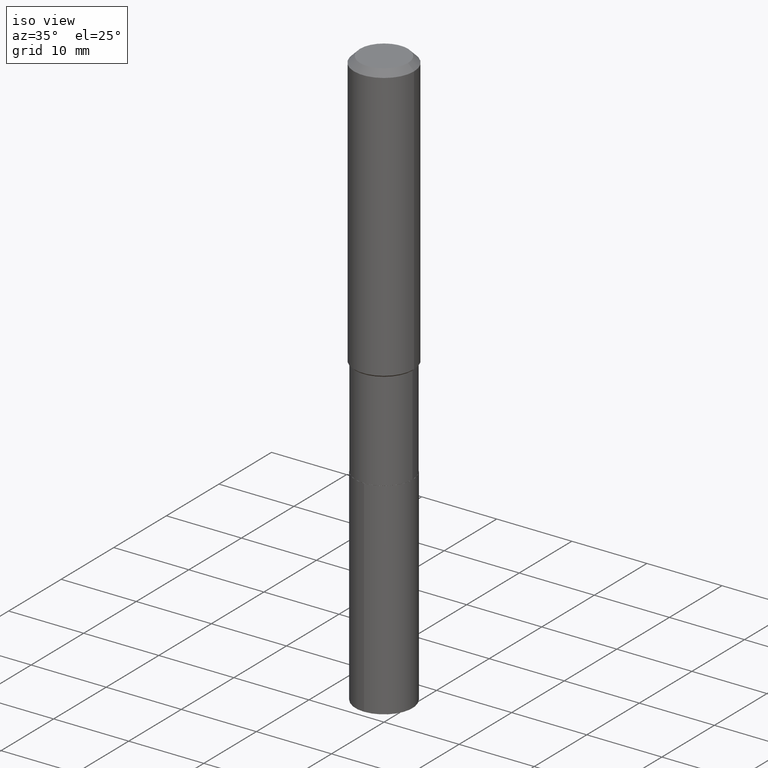
[diagram: clean part render]
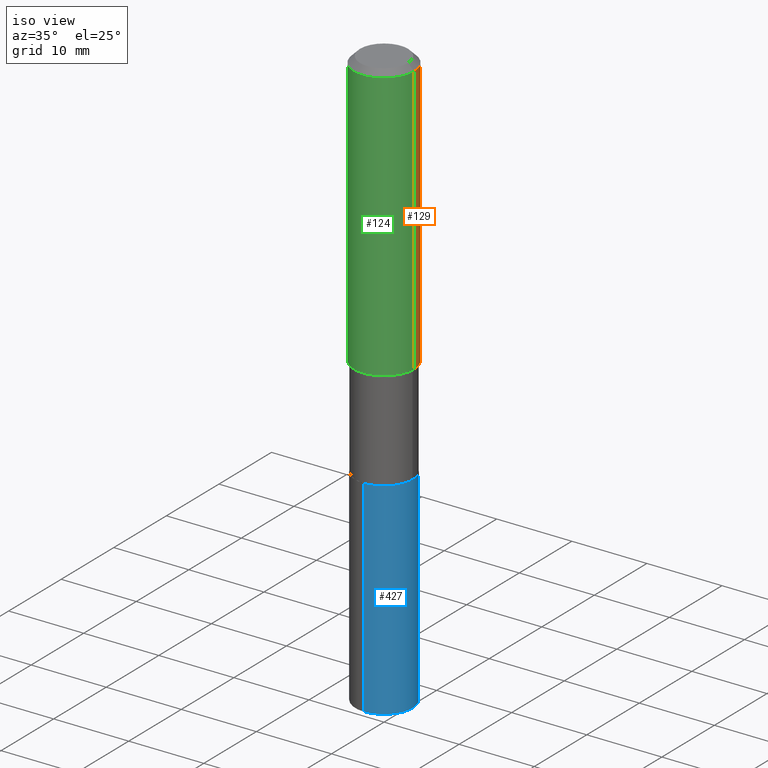
[diagram: same view with three faces highlighted in distinct colors, each labeled with its STEP entity id]
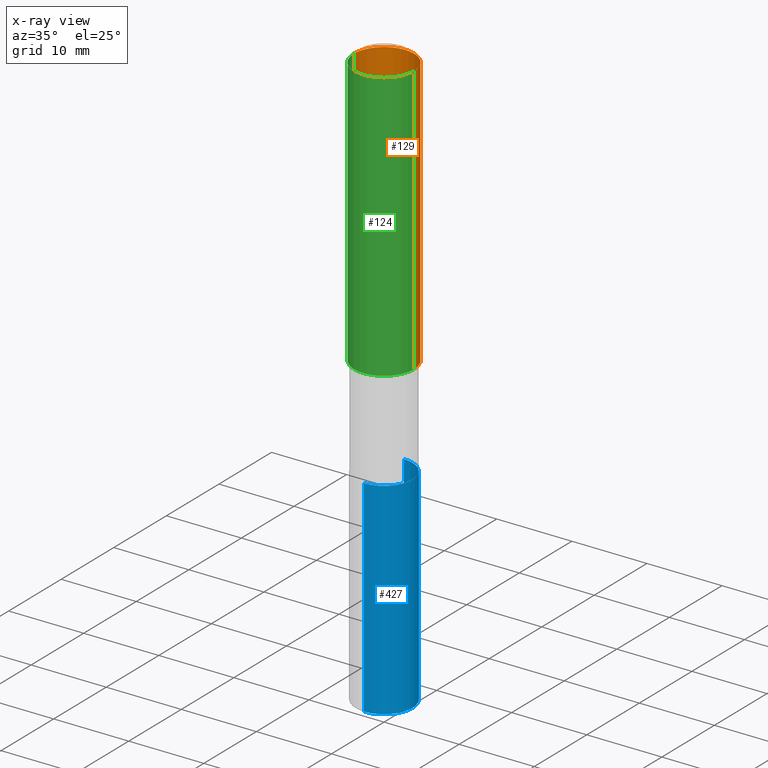
[diagram: x-ray of the same camera — body ghosted, the three highlighted faces saturated]
A machine part, iso view with three faces highlighted in distinct colors.
The next image is the same camera in x-ray (body ghosted, the three faces saturated) — at least one of them is partly hidden behind the body in this view.
Their STEP definitions:

[orange] entity #129 — the highlighted cylindrical surface (partial cylindrical patch) has radius 4.0005 mm, axis along (-0, 0, 1).
#9 = DIRECTION ( 'NONE',  ( -2.445468806185136597E-29, 3.491481338843145583E-15, 1.000000000000000000 ) ) ;
#26 = VECTOR ( 'NONE', #287, 39.37007874015748143 ) ;
#36 = EDGE_LOOP ( 'NONE', ( #361, #159, #177, #471 ) ) ;
#41 = CARTESIAN_POINT ( 'NONE',  ( 0.1575000000000000011, -1.209798283909146741E-15, -0.03150000000000019451 ) ) ;
#113 = AXIS2_PLACEMENT_3D ( 'NONE', #136, #9, #119 ) ;
#119 = DIRECTION ( 'NONE',  ( 1.000000000000000000, -6.982962677686267499E-15, 4.876176775795936353E-29 ) ) ;
#129 = ADVANCED_FACE ( 'NONE', ( #204 ), #288, .T. ) ;
#136 = CARTESIAN_POINT ( 'NONE',  ( 0.000000000000000000, 0.000000000000000000, 0.000000000000000000 ) ) ;
#141 = VERTEX_POINT ( 'NONE', #251 ) ;
#142 = CARTESIAN_POINT ( 'NONE',  ( 7.703226739483226971E-31, -1.099816621735597538E-16, -0.03150000000000019451 ) ) ;
#159 = ORIENTED_EDGE ( 'NONE', *, *, #276, .T. ) ;
#177 = ORIENTED_EDGE ( 'NONE', *, *, #476, .F. ) ;
#182 = LINE ( 'NONE', #332, #26 ) ;
#185 = CARTESIAN_POINT ( 'NONE',  ( -0.1575000000000001676, -3.919801059396268302E-15, -1.443199999999999816 ) ) ;
#203 = CIRCLE ( 'NONE', #419, 0.1575000000000001676 ) ;
#204 = FACE_OUTER_BOUND ( 'NONE', #36, .T. ) ;
#205 = VERTEX_POINT ( 'NONE', #185 ) ;
#218 = CIRCLE ( 'NONE', #265, 0.1575000000000000011 ) ;
#229 = DIRECTION ( 'NONE',  ( -2.445468806185136597E-29, 3.491481338843145583E-15, 1.000000000000000000 ) ) ;
#251 = CARTESIAN_POINT ( 'NONE',  ( 0.1575000000000001676, -6.138722489954014963E-15, -1.443199999999999816 ) ) ;
#265 = AXIS2_PLACEMENT_3D ( 'NONE', #142, #440, #325 ) ;
#268 = EDGE_CURVE ( 'NONE', #141, #205, #203, .T. ) ;
#276 = EDGE_CURVE ( 'NONE', #205, #356, #339, .T. ) ;
#287 = DIRECTION ( 'NONE',  ( -2.445468806185136877E-29, 3.491481338843145188E-15, 1.000000000000000000 ) ) ;
#288 = CYLINDRICAL_SURFACE ( 'NONE', #113, 0.1575000000000000844 ) ;
#300 = VECTOR ( 'NONE', #380, 39.37007874015748143 ) ;
#303 = CARTESIAN_POINT ( 'NONE',  ( 3.529300581086388319E-29, -5.038905868218426694E-15, -1.443199999999999816 ) ) ;
#324 = EDGE_CURVE ( 'NONE', #141, #382, #182, .T. ) ;
#325 = DIRECTION ( 'NONE',  ( 1.000000000000000000, -6.982962677686265922E-15, 0.000000000000000000 ) ) ;
#332 = CARTESIAN_POINT ( 'NONE',  ( 0.1575000000000000844, -1.099816621735587677E-15, 7.679978421878603638E-30 ) ) ;
#339 = LINE ( 'NONE', #387, #300 ) ;
#356 = VERTEX_POINT ( 'NONE', #397 ) ;
#361 = ORIENTED_EDGE ( 'NONE', *, *, #268, .T. ) ;
#380 = DIRECTION ( 'NONE',  ( -2.445468806185136877E-29, 3.491481338843145188E-15, 1.000000000000000000 ) ) ;
#382 = VERTEX_POINT ( 'NONE', #41 ) ;
#387 = CARTESIAN_POINT ( 'NONE',  ( -0.1575000000000000844, 1.119104808822158392E-15, -7.747322767151481189E-30 ) ) ;
#397 = CARTESIAN_POINT ( 'NONE',  ( -0.1575000000000000011, -1.455338956373834684E-15, -0.03150000000000019451 ) ) ;
#416 = DIRECTION ( 'NONE',  ( 1.000000000000000000, -6.982962677686267499E-15, 0.000000000000000000 ) ) ;
#419 = AXIS2_PLACEMENT_3D ( 'NONE', #303, #229, #416 ) ;
#440 = DIRECTION ( 'NONE',  ( -2.445468806185136597E-29, 3.491481338843145583E-15, 1.000000000000000000 ) ) ;
#471 = ORIENTED_EDGE ( 'NONE', *, *, #324, .F. ) ;
#476 = EDGE_CURVE ( 'NONE', #382, #356, #218, .T. ) ;

[blue] entity #427 — the highlighted cylindrical surface (edge-blend (fillet) strip) has radius 3.7998 mm, axis along (-0, 0, 1).
#2 = EDGE_CURVE ( 'NONE', #96, #421, #189, .T. ) ;
#8 = CARTESIAN_POINT ( 'NONE',  ( 1.062971932697184699E-15, 0.1495999999999931551, -1.968500000000000583 ) ) ;
#16 = VECTOR ( 'NONE', #362, 39.37007874015748143 ) ;
#35 = CIRCLE ( 'NONE', #366, 0.1496000000000000107 ) ;
#40 = ORIENTED_EDGE ( 'NONE', *, *, #463, .F. ) ;
#68 = EDGE_CURVE ( 'NONE', #487, #96, #318, .T. ) ;
#69 = CARTESIAN_POINT ( 'NONE',  ( 1.062971932697157878E-15, 0.1495999999999931274, -1.968500000000000583 ) ) ;
#70 = VECTOR ( 'NONE', #337, 39.37007874015748143 ) ;
#86 = CARTESIAN_POINT ( 'NONE',  ( -1.044651216581817283E-15, -0.1496000000000068941, -1.968499999999999472 ) ) ;
#96 = VERTEX_POINT ( 'NONE', #225 ) ;
#115 = CARTESIAN_POINT ( 'NONE',  ( 7.461655936999831044E-29, -1.065364489916640516E-14, -3.051270992848005736 ) ) ;
#123 = DIRECTION ( 'NONE',  ( -2.445346808802135557E-29, 3.491656046039262657E-15, 1.000000000000000000 ) ) ;
#132 = ORIENTED_EDGE ( 'NONE', *, *, #425, .F. ) ;
#156 = AXIS2_PLACEMENT_3D ( 'NONE', #241, #246, #392 ) ;
#174 = FACE_OUTER_BOUND ( 'NONE', #431, .T. ) ;
#189 = LINE ( 'NONE', #69, #70 ) ;
#225 = CARTESIAN_POINT ( 'NONE',  ( 1.062971932697184502E-15, 0.1495999999999893804, -3.051270992848006181 ) ) ;
#241 = CARTESIAN_POINT ( 'NONE',  ( 4.813905344975441835E-29, -6.872981015512731707E-15, -1.968500000000000139 ) ) ;
#242 = AXIS2_PLACEMENT_3D ( 'NONE', #115, #262, #415 ) ;
#244 = CARTESIAN_POINT ( 'NONE',  ( 4.813905344975441835E-29, -6.872981015512731707E-15, -1.968500000000000139 ) ) ;
#246 = DIRECTION ( 'NONE',  ( -2.445346808802135557E-29, 3.491656046039262657E-15, 1.000000000000000000 ) ) ;
#262 = DIRECTION ( 'NONE',  ( -2.445346808802135557E-29, 3.491656046039262657E-15, 1.000000000000000000 ) ) ;
#275 = DIRECTION ( 'NONE',  ( -6.982962677686265922E-15, -1.000000000000000000, 3.652203200085913145E-15 ) ) ;
#316 = ORIENTED_EDGE ( 'NONE', *, *, #68, .T. ) ;
#317 = CYLINDRICAL_SURFACE ( 'NONE', #156, 0.1496000000000000107 ) ;
#318 = CIRCLE ( 'NONE', #242, 0.1496000000000000107 ) ;
#328 = LINE ( 'NONE', #434, #16 ) ;
#337 = DIRECTION ( 'NONE',  ( -2.445346808802135557E-29, 3.491656046039262657E-15, 1.000000000000000000 ) ) ;
#362 = DIRECTION ( 'NONE',  ( -2.445346808802135557E-29, 3.491656046039262657E-15, 1.000000000000000000 ) ) ;
#366 = AXIS2_PLACEMENT_3D ( 'NONE', #244, #123, #275 ) ;
#391 = VERTEX_POINT ( 'NONE', #86 ) ;
#392 = DIRECTION ( 'NONE',  ( -6.982962677686265922E-15, -1.000000000000000000, 3.652203200085913145E-15 ) ) ;
#396 = CARTESIAN_POINT ( 'NONE',  ( -1.044651216581790856E-15, -0.1496000000000106689, -3.051270992848004848 ) ) ;
#415 = DIRECTION ( 'NONE',  ( -6.982962677686265922E-15, -1.000000000000000000, 3.652203200085913145E-15 ) ) ;
#421 = VERTEX_POINT ( 'NONE', #8 ) ;
#425 = EDGE_CURVE ( 'NONE', #391, #421, #35, .T. ) ;
#427 = ADVANCED_FACE ( 'NONE', ( #174 ), #317, .T. ) ;
#431 = EDGE_LOOP ( 'NONE', ( #316, #474, #132, #40 ) ) ;
#434 = CARTESIAN_POINT ( 'NONE',  ( -1.044651216581817283E-15, -0.1496000000000068941, -1.968499999999999472 ) ) ;
#463 = EDGE_CURVE ( 'NONE', #487, #391, #328, .T. ) ;
#474 = ORIENTED_EDGE ( 'NONE', *, *, #2, .T. ) ;
#487 = VERTEX_POINT ( 'NONE', #396 ) ;

[green] entity #124 — the highlighted cylindrical surface (partial cylindrical patch) has radius 4.0005 mm, axis along (-0, 0, 1).
#1 = EDGE_CURVE ( 'NONE', #205, #141, #234, .T. ) ;
#24 = DIRECTION ( 'NONE',  ( 1.000000000000000000, -6.982962677686267499E-15, 0.000000000000000000 ) ) ;
#26 = VECTOR ( 'NONE', #287, 39.37007874015748143 ) ;
#39 = EDGE_CURVE ( 'NONE', #356, #382, #98, .T. ) ;
#41 = CARTESIAN_POINT ( 'NONE',  ( 0.1575000000000000011, -1.209798283909146741E-15, -0.03150000000000019451 ) ) ;
#49 = CARTESIAN_POINT ( 'NONE',  ( 0.000000000000000000, 0.000000000000000000, 0.000000000000000000 ) ) ;
#74 = DIRECTION ( 'NONE',  ( -2.445468806185136597E-29, 3.491481338843145583E-15, 1.000000000000000000 ) ) ;
#94 = ORIENTED_EDGE ( 'NONE', *, *, #324, .T. ) ;
#98 = CIRCLE ( 'NONE', #371, 0.1575000000000000011 ) ;
#124 = ADVANCED_FACE ( 'NONE', ( #245 ), #279, .T. ) ;
#141 = VERTEX_POINT ( 'NONE', #251 ) ;
#179 = ORIENTED_EDGE ( 'NONE', *, *, #39, .F. ) ;
#182 = LINE ( 'NONE', #332, #26 ) ;
#185 = CARTESIAN_POINT ( 'NONE',  ( -0.1575000000000001676, -3.919801059396268302E-15, -1.443199999999999816 ) ) ;
#202 = AXIS2_PLACEMENT_3D ( 'NONE', #468, #286, #24 ) ;
#205 = VERTEX_POINT ( 'NONE', #185 ) ;
#234 = CIRCLE ( 'NONE', #202, 0.1575000000000001676 ) ;
#245 = FACE_OUTER_BOUND ( 'NONE', #321, .T. ) ;
#251 = CARTESIAN_POINT ( 'NONE',  ( 0.1575000000000001676, -6.138722489954014963E-15, -1.443199999999999816 ) ) ;
#276 = EDGE_CURVE ( 'NONE', #205, #356, #339, .T. ) ;
#279 = CYLINDRICAL_SURFACE ( 'NONE', #319, 0.1575000000000000844 ) ;
#286 = DIRECTION ( 'NONE',  ( -2.445468806185136597E-29, 3.491481338843145583E-15, 1.000000000000000000 ) ) ;
#287 = DIRECTION ( 'NONE',  ( -2.445468806185136877E-29, 3.491481338843145188E-15, 1.000000000000000000 ) ) ;
#300 = VECTOR ( 'NONE', #380, 39.37007874015748143 ) ;
#319 = AXIS2_PLACEMENT_3D ( 'NONE', #49, #393, #436 ) ;
#321 = EDGE_LOOP ( 'NONE', ( #350, #395, #94, #179 ) ) ;
#324 = EDGE_CURVE ( 'NONE', #141, #382, #182, .T. ) ;
#332 = CARTESIAN_POINT ( 'NONE',  ( 0.1575000000000000844, -1.099816621735587677E-15, 7.679978421878603638E-30 ) ) ;
#336 = DIRECTION ( 'NONE',  ( 1.000000000000000000, -6.982962677686265922E-15, 0.000000000000000000 ) ) ;
#339 = LINE ( 'NONE', #387, #300 ) ;
#350 = ORIENTED_EDGE ( 'NONE', *, *, #276, .F. ) ;
#356 = VERTEX_POINT ( 'NONE', #397 ) ;
#371 = AXIS2_PLACEMENT_3D ( 'NONE', #481, #74, #336 ) ;
#380 = DIRECTION ( 'NONE',  ( -2.445468806185136877E-29, 3.491481338843145188E-15, 1.000000000000000000 ) ) ;
#382 = VERTEX_POINT ( 'NONE', #41 ) ;
#387 = CARTESIAN_POINT ( 'NONE',  ( -0.1575000000000000844, 1.119104808822158392E-15, -7.747322767151481189E-30 ) ) ;
#393 = DIRECTION ( 'NONE',  ( -2.445468806185136597E-29, 3.491481338843145583E-15, 1.000000000000000000 ) ) ;
#395 = ORIENTED_EDGE ( 'NONE', *, *, #1, .T. ) ;
#397 = CARTESIAN_POINT ( 'NONE',  ( -0.1575000000000000011, -1.455338956373834684E-15, -0.03150000000000019451 ) ) ;
#436 = DIRECTION ( 'NONE',  ( 1.000000000000000000, -6.982962677686267499E-15, 4.876176775795936353E-29 ) ) ;
#468 = CARTESIAN_POINT ( 'NONE',  ( 3.529300581086388319E-29, -5.038905868218426694E-15, -1.443199999999999816 ) ) ;
#481 = CARTESIAN_POINT ( 'NONE',  ( 7.703226739483226971E-31, -1.099816621735597538E-16, -0.03150000000000019451 ) ) ;